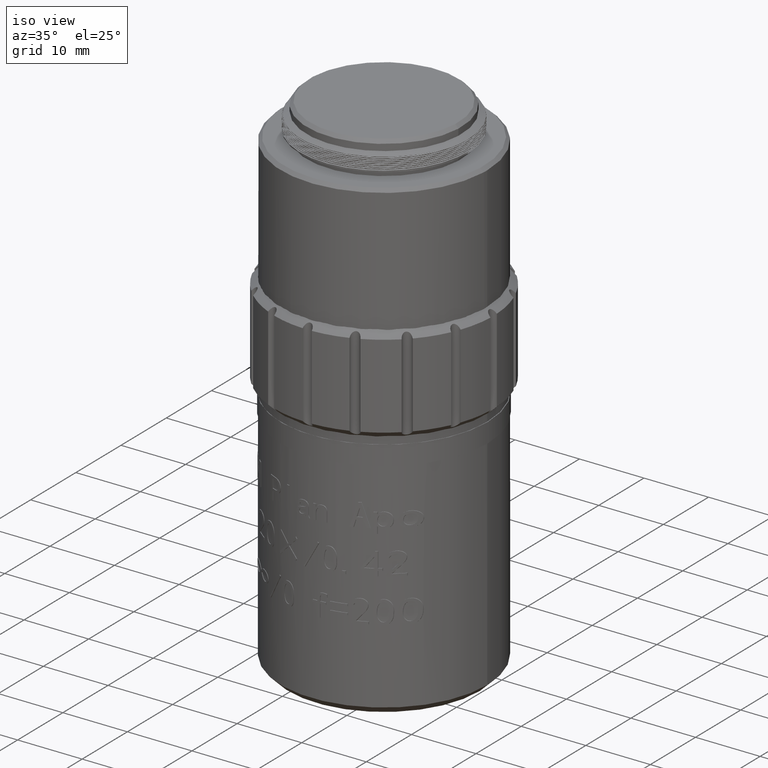
[diagram: clean part render]
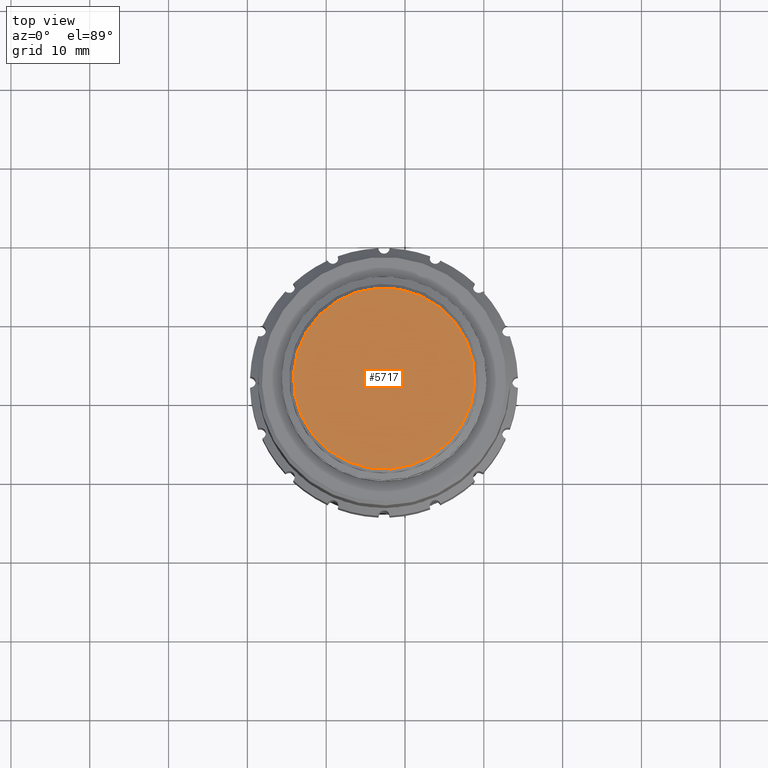
[diagram: tour spotlight — one face highlighted and labeled with its STEP entity id]
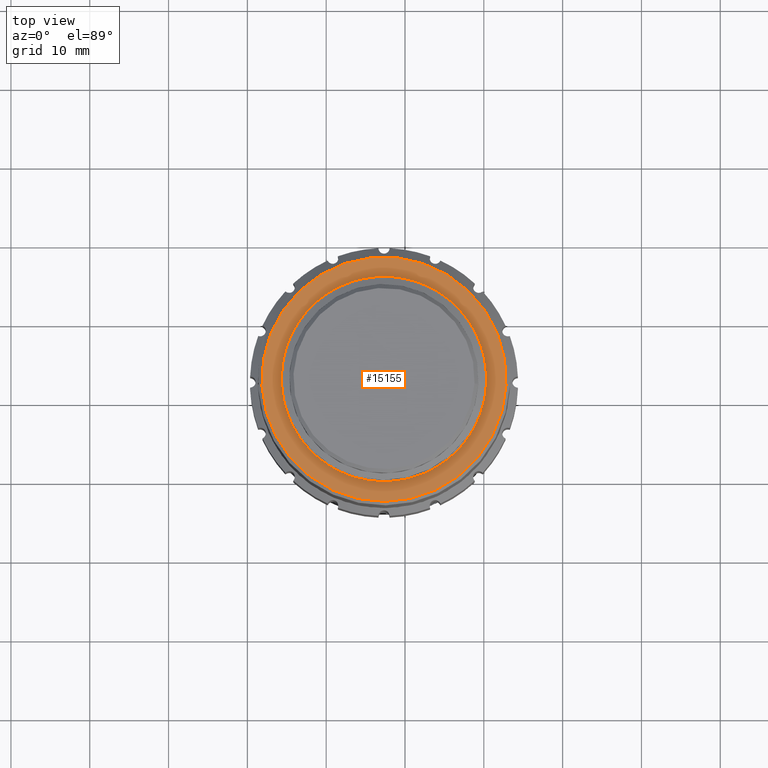
[diagram: tour spotlight — one face highlighted and labeled with its STEP entity id]
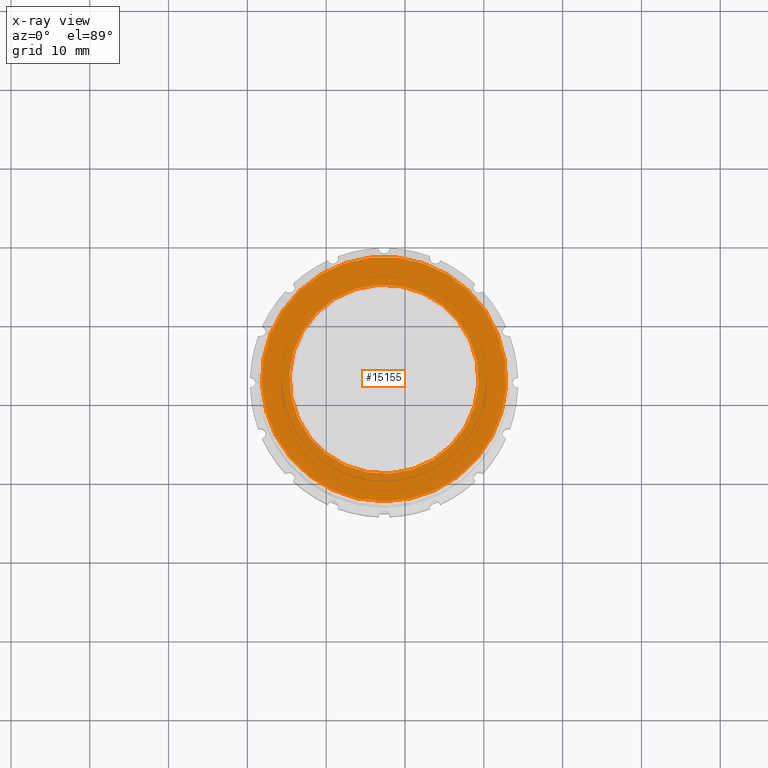
[diagram: x-ray of the same camera — body ghosted, this tour face saturated]
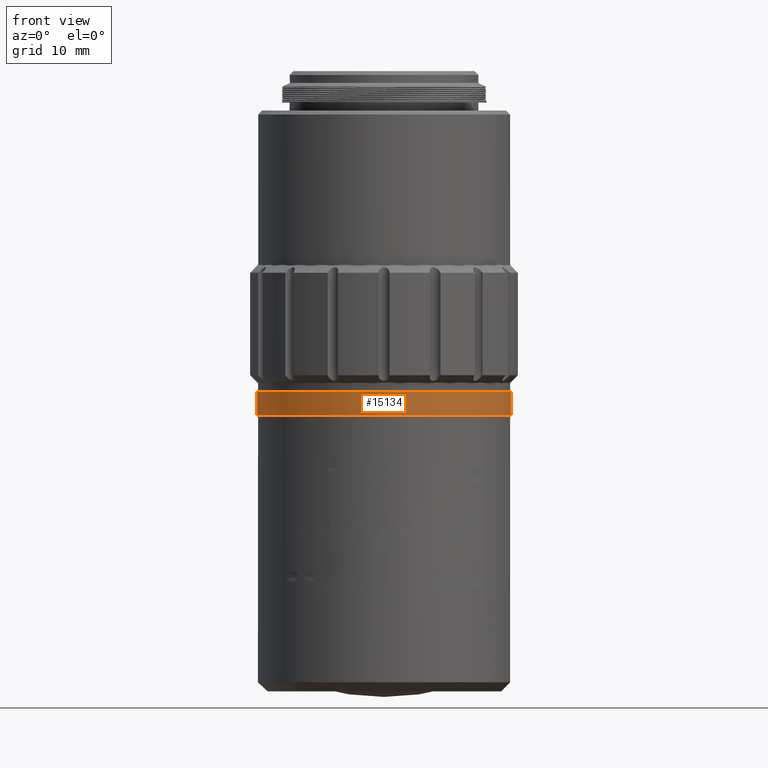
[diagram: tour spotlight — one face highlighted and labeled with its STEP entity id]
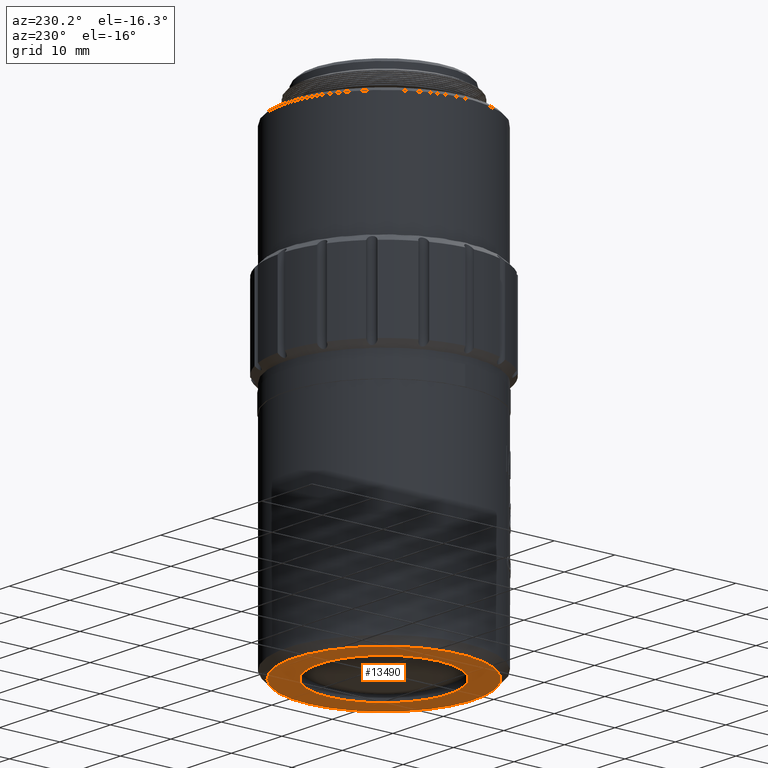
[diagram: tour spotlight — one face highlighted and labeled with its STEP entity id]
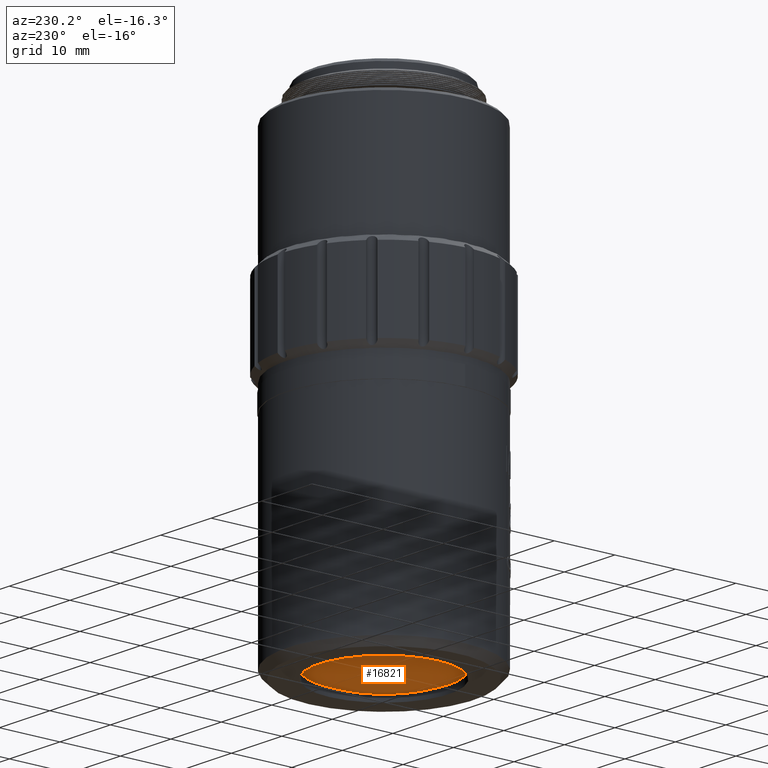
[diagram: tour spotlight — one face highlighted and labeled with its STEP entity id]
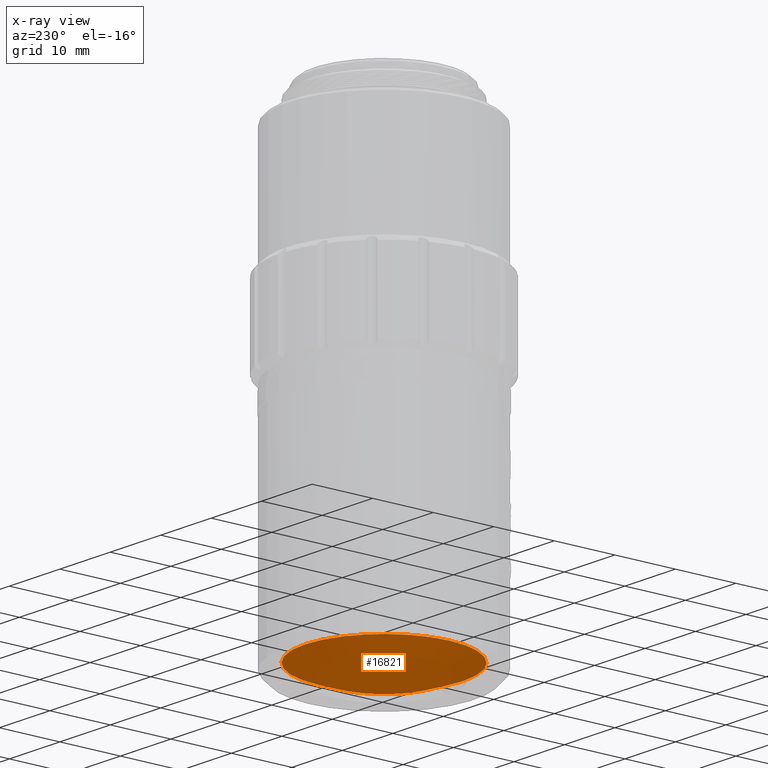
[diagram: x-ray of the same camera — body ghosted, this tour face saturated]
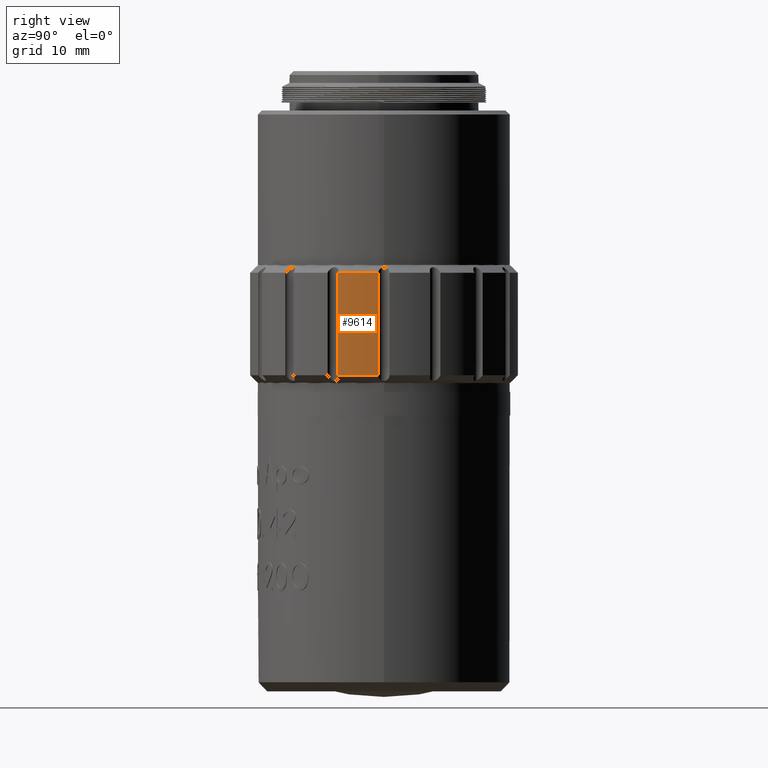
[diagram: tour spotlight — one face highlighted and labeled with its STEP entity id]
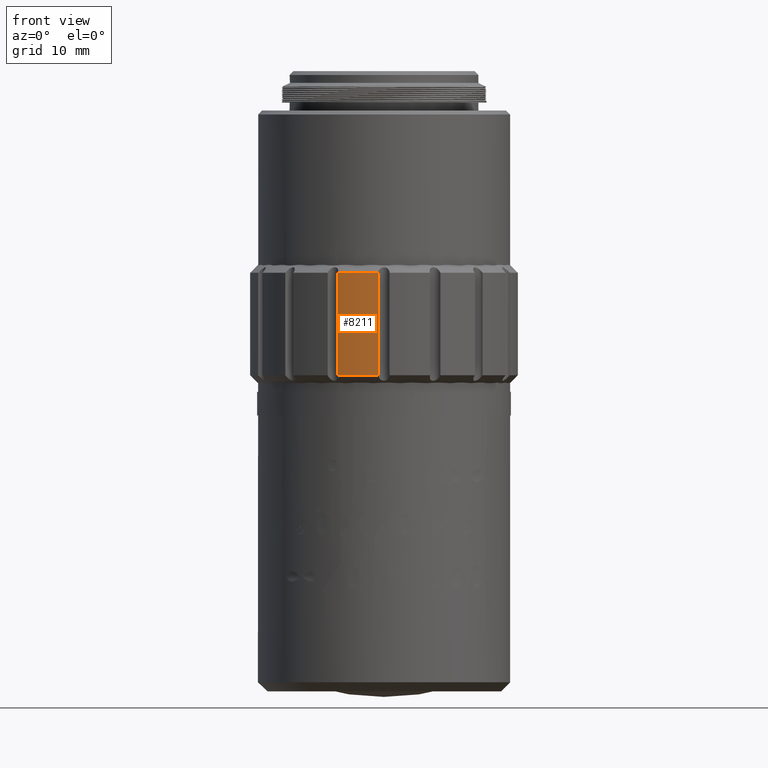
[diagram: tour spotlight — one face highlighted and labeled with its STEP entity id]
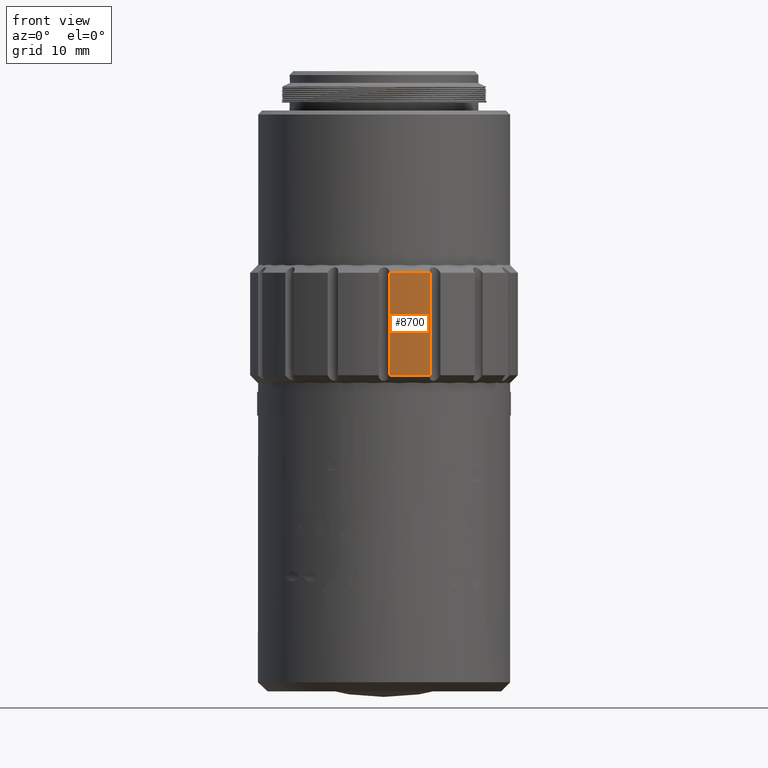
[diagram: tour spotlight — one face highlighted and labeled with its STEP entity id]
A machine part: a face-by-face anatomy tour. The part has 316 B-rep faces; the first image is the clean iso view, then the 8 largest visible faces are spotlighted one at a time (largest first), each with its STEP entity span.

Face 1 — top view, entity #5717. In plain terms, the highlighted planar face has unit normal (0, 0, 1).
Definition (entity closure, byte-faithful):
#2453 = PLANE ( 'NONE',  #8706 ) ;
#2807 = AXIS2_PLACEMENT_3D ( 'NONE', #12422, #10844, #3688 ) ;
#3675 = DIRECTION ( 'NONE',  ( 0.9984986589527603540, -0.05477616333350730782, 0.000000000000000000 ) ) ;
#3688 = DIRECTION ( 'NONE',  ( 0.9984986589527603540, -0.05477616333350738415, 0.000000000000000000 ) ) ;
#4784 = EDGE_LOOP ( 'NONE', ( #13995 ) ) ;
#4984 = CARTESIAN_POINT ( 'NONE',  ( -111.1802995289275344, 21.38537695410330386, 32.09225607790694568 ) ) ;
#5717 = ADVANCED_FACE ( 'NONE', ( #16756 ), #2453, .T. ) ;
#6471 = DIRECTION ( 'NONE',  ( 0.000000000000000000, 0.000000000000000000, 1.000000000000000000 ) ) ;
#8461 = CIRCLE ( 'NONE', #2807, 11.50000000000000178 ) ;
#8706 = AXIS2_PLACEMENT_3D ( 'NONE', #12408, #6471, #3675 ) ;
#10728 = EDGE_CURVE ( 'NONE', #17504, #17504, #8461, .T. ) ;
#10844 = DIRECTION ( 'NONE',  ( 0.000000000000000000, 0.000000000000000000, 1.000000000000000000 ) ) ;
#12408 = CARTESIAN_POINT ( 'NONE',  ( -122.6630341068842824, 22.01530283243863906, 32.09225607790694568 ) ) ;
#12422 = CARTESIAN_POINT ( 'NONE',  ( -122.6630341068842824, 22.01530283243863906, 32.09225607790694568 ) ) ;
#13995 = ORIENTED_EDGE ( 'NONE', *, *, #10728, .T. ) ;
#16756 = FACE_OUTER_BOUND ( 'NONE', #4784, .T. ) ;
#17504 = VERTEX_POINT ( 'NONE', #4984 ) ;

Face 2 — top view, entity #15155. An x-ray twin of the same camera follows (body ghosted, this face saturated) — the face is partly hidden behind the body. In plain terms, the highlighted planar face has unit normal (0, 0, 1).
Definition (entity closure, byte-faithful):
#318 = EDGE_LOOP ( 'NONE', ( #18249 ) ) ;
#609 = CARTESIAN_POINT ( 'NONE',  ( -110.6810501994511498, 21.35798887243655031, 27.09225607790693857 ) ) ;
#987 = FACE_OUTER_BOUND ( 'NONE', #318, .T. ) ;
#1286 = DIRECTION ( 'NONE',  ( 0.9984986589527603540, -0.05477616333350721067, 0.000000000000000000 ) ) ;
#1313 = AXIS2_PLACEMENT_3D ( 'NONE', #15503, #11232, #1286 ) ;
#2471 = DIRECTION ( 'NONE',  ( 0.000000000000000000, 0.000000000000000000, 1.000000000000000000 ) ) ;
#2518 = ORIENTED_EDGE ( 'NONE', *, *, #11898, .F. ) ;
#3475 = EDGE_LOOP ( 'NONE', ( #2518 ) ) ;
#3863 = EDGE_CURVE ( 'NONE', #6478, #6478, #16737, .T. ) ;
#3974 = CARTESIAN_POINT ( 'NONE',  ( -122.6630341068842824, 22.01530283243863906, 27.09225607790693857 ) ) ;
#6478 = VERTEX_POINT ( 'NONE', #8990 ) ;
#8990 = CARTESIAN_POINT ( 'NONE',  ( -107.1863048931164997, 21.16627230076927901, 27.09225607790693857 ) ) ;
#10353 = AXIS2_PLACEMENT_3D ( 'NONE', #18224, #11439, #15443 ) ;
#11232 = DIRECTION ( 'NONE',  ( 0.000000000000000000, 0.000000000000000000, 1.000000000000000000 ) ) ;
#11439 = DIRECTION ( 'NONE',  ( 0.000000000000000000, 0.000000000000000000, 1.000000000000000000 ) ) ;
#11898 = EDGE_CURVE ( 'NONE', #14730, #14730, #18341, .T. ) ;
#14730 = VERTEX_POINT ( 'NONE', #609 ) ;
#15113 = DIRECTION ( 'NONE',  ( 0.9984986589527603540, -0.05477616333350730782, 0.000000000000000000 ) ) ;
#15155 = ADVANCED_FACE ( 'NONE', ( #987, #15295 ), #16770, .T. ) ;
#15295 = FACE_BOUND ( 'NONE', #3475, .T. ) ;
#15443 = DIRECTION ( 'NONE',  ( 0.9984986589527604650, -0.05477616333350729394, 0.000000000000000000 ) ) ;
#15503 = CARTESIAN_POINT ( 'NONE',  ( -122.6630341068842824, 22.01530283243863906, 27.09225607790693857 ) ) ;
#15949 = AXIS2_PLACEMENT_3D ( 'NONE', #3974, #2471, #15113 ) ;
#16737 = CIRCLE ( 'NONE', #1313, 15.50000000000000355 ) ;
#16770 = PLANE ( 'NONE',  #15949 ) ;
#18224 = CARTESIAN_POINT ( 'NONE',  ( -122.6630341068842824, 22.01530283243863906, 27.09225607790693857 ) ) ;
#18249 = ORIENTED_EDGE ( 'NONE', *, *, #3863, .T. ) ;
#18341 = CIRCLE ( 'NONE', #10353, 12.00000000000000533 ) ;

Face 3 — front view, entity #15134. In plain terms, the highlighted cylindrical surface (bore or boss wall) has radius 16.1 mm, axis along (0, 0, -1).
Definition (entity closure, byte-faithful):
#1134 = CIRCLE ( 'NONE', #4110, 16.10000000000000142 ) ;
#1164 = DIRECTION ( 'NONE',  ( 0.000000000000000000, 0.000000000000000000, -1.000000000000000000 ) ) ;
#1246 = AXIS2_PLACEMENT_3D ( 'NONE', #3769, #9254, #17775 ) ;
#1259 = CYLINDRICAL_SURFACE ( 'NONE', #6473, 16.10000000000000142 ) ;
#1341 = CARTESIAN_POINT ( 'NONE',  ( -122.6630341068842824, 22.01530283243863906, -8.607743922093051836 ) ) ;
#3769 = CARTESIAN_POINT ( 'NONE',  ( -122.6630341068842824, 22.01530283243863906, -11.60774392209305184 ) ) ;
#4110 = AXIS2_PLACEMENT_3D ( 'NONE', #10932, #1164, #13722 ) ;
#4620 = CARTESIAN_POINT ( 'NONE',  ( -138.7630341068842768, 22.01530283243863906, -11.60774392209305184 ) ) ;
#4907 = EDGE_LOOP ( 'NONE', ( #6481 ) ) ;
#6473 = AXIS2_PLACEMENT_3D ( 'NONE', #1341, #13730, #16498 ) ;
#6481 = ORIENTED_EDGE ( 'NONE', *, *, #9421, .T. ) ;
#7700 = VERTEX_POINT ( 'NONE', #9080 ) ;
#8250 = FACE_OUTER_BOUND ( 'NONE', #4907, .T. ) ;
#8887 = ORIENTED_EDGE ( 'NONE', *, *, #17281, .F. ) ;
#9080 = CARTESIAN_POINT ( 'NONE',  ( -138.7630341068842768, 22.01530283243863906, -8.607743922093051836 ) ) ;
#9254 = DIRECTION ( 'NONE',  ( 0.000000000000000000, 0.000000000000000000, -1.000000000000000000 ) ) ;
#9273 = CIRCLE ( 'NONE', #1246, 16.10000000000000142 ) ;
#9421 = EDGE_CURVE ( 'NONE', #7700, #7700, #1134, .T. ) ;
#10932 = CARTESIAN_POINT ( 'NONE',  ( -122.6630341068842824, 22.01530283243863906, -8.607743922093051836 ) ) ;
#12137 = VERTEX_POINT ( 'NONE', #4620 ) ;
#12850 = EDGE_LOOP ( 'NONE', ( #8887 ) ) ;
#13722 = DIRECTION ( 'NONE',  ( -1.000000000000000000, 0.000000000000000000, 0.000000000000000000 ) ) ;
#13730 = DIRECTION ( 'NONE',  ( 0.000000000000000000, 0.000000000000000000, -1.000000000000000000 ) ) ;
#15134 = ADVANCED_FACE ( 'NONE', ( #8250, #18251 ), #1259, .T. ) ;
#16498 = DIRECTION ( 'NONE',  ( -1.000000000000000000, 0.000000000000000000, 0.000000000000000000 ) ) ;
#17281 = EDGE_CURVE ( 'NONE', #12137, #12137, #9273, .T. ) ;
#17775 = DIRECTION ( 'NONE',  ( -1.000000000000000000, 0.000000000000000000, 0.000000000000000000 ) ) ;
#18251 = FACE_OUTER_BOUND ( 'NONE', #12850, .T. ) ;

Face 4 — auxiliary view, entity #13490. In plain terms, the highlighted planar face has unit normal (0, 0, 1).
Definition (entity closure, byte-faithful):
#963 = EDGE_LOOP ( 'NONE', ( #15543 ) ) ;
#1903 = CARTESIAN_POINT ( 'NONE',  ( -107.8130341068843876, 22.01530283243863906, -46.60774392209305717 ) ) ;
#1994 = VERTEX_POINT ( 'NONE', #1903 ) ;
#2334 = EDGE_CURVE ( 'NONE', #1994, #1994, #15178, .T. ) ;
#2404 = AXIS2_PLACEMENT_3D ( 'NONE', #16066, #5965, #11892 ) ;
#2873 = FACE_OUTER_BOUND ( 'NONE', #11732, .T. ) ;
#3310 = VERTEX_POINT ( 'NONE', #12040 ) ;
#3426 = DIRECTION ( 'NONE',  ( -0.000000000000000000, -0.000000000000000000, -1.000000000000000000 ) ) ;
#3474 = ORIENTED_EDGE ( 'NONE', *, *, #2334, .T. ) ;
#3716 = EDGE_CURVE ( 'NONE', #3310, #3310, #10431, .T. ) ;
#5854 = AXIS2_PLACEMENT_3D ( 'NONE', #8745, #12922, #14404 ) ;
#5965 = DIRECTION ( 'NONE',  ( 0.000000000000000000, 0.000000000000000000, -1.000000000000000000 ) ) ;
#7170 = FACE_BOUND ( 'NONE', #963, .T. ) ;
#8745 = CARTESIAN_POINT ( 'NONE',  ( -145.5982777142671978, 0.000000000000000000, -46.60774392209305717 ) ) ;
#10431 = CIRCLE ( 'NONE', #2404, 10.71781334890054005 ) ;
#11732 = EDGE_LOOP ( 'NONE', ( #3474 ) ) ;
#11892 = DIRECTION ( 'NONE',  ( -1.000000000000000000, 0.000000000000000000, 0.000000000000000000 ) ) ;
#12040 = CARTESIAN_POINT ( 'NONE',  ( -133.3808474557848172, 22.01530283243863906, -46.60774392209305717 ) ) ;
#12922 = DIRECTION ( 'NONE',  ( 0.000000000000000000, 0.000000000000000000, 1.000000000000000000 ) ) ;
#13490 = ADVANCED_FACE ( 'NONE', ( #7170, #2873 ), #15606, .F. ) ;
#14404 = DIRECTION ( 'NONE',  ( 1.000000000000000000, 0.000000000000000000, -0.000000000000000000 ) ) ;
#15178 = CIRCLE ( 'NONE', #18141, 14.84999999999989129 ) ;
#15543 = ORIENTED_EDGE ( 'NONE', *, *, #3716, .F. ) ;
#15606 = PLANE ( 'NONE',  #5854 ) ;
#15866 = DIRECTION ( 'NONE',  ( 1.000000000000000000, 0.000000000000000000, 0.000000000000000000 ) ) ;
#16066 = CARTESIAN_POINT ( 'NONE',  ( -122.6630341068842824, 22.01530283243863906, -46.60774392209305717 ) ) ;
#16144 = CARTESIAN_POINT ( 'NONE',  ( -122.6630341068842824, 22.01530283243863906, -46.60774392209305717 ) ) ;
#18141 = AXIS2_PLACEMENT_3D ( 'NONE', #16144, #3426, #15866 ) ;

Face 5 — auxiliary view, entity #16821. An x-ray twin of the same camera follows (body ghosted, this face saturated) — the face is partly hidden behind the body. In plain terms, the highlighted spherical surface has radius 31.2095 mm.
Definition (entity closure, byte-faithful):
#1463 = FACE_OUTER_BOUND ( 'NONE', #14187, .T. ) ;
#2717 = AXIS2_PLACEMENT_3D ( 'NONE', #10032, #8826, #8551 ) ;
#3134 = ORIENTED_EDGE ( 'NONE', *, *, #7014, .F. ) ;
#3402 = VERTEX_POINT ( 'NONE', #3492 ) ;
#3492 = CARTESIAN_POINT ( 'NONE',  ( -122.6630341068842824, 35.03833184500979314, -44.46615452867705187 ) ) ;
#4470 = CIRCLE ( 'NONE', #17791, 13.02302901257115764 ) ;
#5499 = CARTESIAN_POINT ( 'NONE',  ( -122.6630341068842824, 22.01530283243863195, -44.46615452867705187 ) ) ;
#7014 = EDGE_CURVE ( 'NONE', #3402, #3402, #4470, .T. ) ;
#8551 = DIRECTION ( 'NONE',  ( 0.000000000000000000, -1.000000000000000000, 0.000000000000000000 ) ) ;
#8826 = DIRECTION ( 'NONE',  ( 0.000000000000000000, 0.000000000000000000, -1.000000000000000000 ) ) ;
#10032 = CARTESIAN_POINT ( 'NONE',  ( -122.6630341068842824, 22.01530283243863195, -16.10359932668290028 ) ) ;
#13002 = SPHERICAL_SURFACE ( 'NONE', #2717, 31.20951493132239918 ) ;
#14187 = EDGE_LOOP ( 'NONE', ( #3134 ) ) ;
#15694 = DIRECTION ( 'NONE',  ( -0.000000000000000000, -1.313240075463129887E-16, 1.000000000000000000 ) ) ;
#16821 = ADVANCED_FACE ( 'NONE', ( #1463 ), #13002, .T. ) ;
#16894 = DIRECTION ( 'NONE',  ( 0.000000000000000000, 1.000000000000000000, 0.000000000000000000 ) ) ;
#17791 = AXIS2_PLACEMENT_3D ( 'NONE', #5499, #15694, #16894 ) ;

Face 6 — right view, entity #9614. In plain terms, the highlighted cylindrical surface (partial cylindrical patch) has radius 17 mm, axis along (-0, -0, -1).
Definition (entity closure, byte-faithful):
#168 = DIRECTION ( 'NONE',  ( -0.000000000000000000, -0.000000000000000000, -1.000000000000000000 ) ) ;
#969 = DIRECTION ( 'NONE',  ( 0.000000000000000000, 0.000000000000000000, -1.000000000000000000 ) ) ;
#1260 = ORIENTED_EDGE ( 'NONE', *, *, #6637, .T. ) ;
#2161 = EDGE_CURVE ( 'NONE', #13875, #2789, #13409, .T. ) ;
#2358 = LINE ( 'NONE', #15188, #13420 ) ;
#2366 = DIRECTION ( 'NONE',  ( -0.000000000000000000, -0.000000000000000000, -1.000000000000000000 ) ) ;
#2789 = VERTEX_POINT ( 'NONE', #15117 ) ;
#3527 = AXIS2_PLACEMENT_3D ( 'NONE', #10842, #2366, #8064 ) ;
#3823 = LINE ( 'NONE', #7925, #4586 ) ;
#4586 = VECTOR ( 'NONE', #15243, 1000.000000000000000 ) ;
#4753 = EDGE_CURVE ( 'NONE', #14809, #13875, #3823, .T. ) ;
#4815 = ORIENTED_EDGE ( 'NONE', *, *, #17321, .T. ) ;
#5670 = DIRECTION ( 'NONE',  ( -1.000000000000000000, 0.000000000000000000, 0.000000000000000000 ) ) ;
#6294 = AXIS2_PLACEMENT_3D ( 'NONE', #7253, #168, #5670 ) ;
#6637 = EDGE_CURVE ( 'NONE', #11287, #14809, #12264, .T. ) ;
#7253 = CARTESIAN_POINT ( 'NONE',  ( -122.6630341068842540, 22.01530283243863195, 6.500000000000000000 ) ) ;
#7525 = AXIS2_PLACEMENT_3D ( 'NONE', #13510, #10352, #14622 ) ;
#7925 = CARTESIAN_POINT ( 'NONE',  ( -105.6777818098502735, 21.30734491977609224, -5.050000000000006928 ) ) ;
#8064 = DIRECTION ( 'NONE',  ( -1.000000000000000000, 0.000000000000000000, 0.000000000000000000 ) ) ;
#8609 = EDGE_LOOP ( 'NONE', ( #16903, #4815, #1260, #11402 ) ) ;
#9614 = ADVANCED_FACE ( 'NONE', ( #16398 ), #17884, .T. ) ;
#10352 = DIRECTION ( 'NONE',  ( 0.000000000000000000, 0.000000000000000000, 1.000000000000000000 ) ) ;
#10842 = CARTESIAN_POINT ( 'NONE',  ( -122.6630341068842540, 22.01530283243863195, -8.750073880203553145 ) ) ;
#10846 = CARTESIAN_POINT ( 'NONE',  ( -105.6777818098502735, 21.30734491977609224, 6.500000000000000000 ) ) ;
#11287 = VERTEX_POINT ( 'NONE', #15966 ) ;
#11402 = ORIENTED_EDGE ( 'NONE', *, *, #4753, .T. ) ;
#11777 = CARTESIAN_POINT ( 'NONE',  ( -105.6777818098502735, 21.30734491977609224, -6.499999999999999112 ) ) ;
#12264 = CIRCLE ( 'NONE', #7525, 17.00000000000000000 ) ;
#13409 = CIRCLE ( 'NONE', #6294, 16.99999999999998579 ) ;
#13420 = VECTOR ( 'NONE', #969, 1000.000000000000000 ) ;
#13510 = CARTESIAN_POINT ( 'NONE',  ( -122.6630341068842540, 22.01530283243863195, -6.499999999999999112 ) ) ;
#13875 = VERTEX_POINT ( 'NONE', #10846 ) ;
#14622 = DIRECTION ( 'NONE',  ( 1.000000000000000000, 0.000000000000000000, 0.000000000000000000 ) ) ;
#14809 = VERTEX_POINT ( 'NONE', #11777 ) ;
#15117 = CARTESIAN_POINT ( 'NONE',  ( -106.6997833911265161, 16.16939600921096343, 6.500000000000000000 ) ) ;
#15188 = CARTESIAN_POINT ( 'NONE',  ( -106.6997833911265161, 16.16939600921095632, -5.050000000000006928 ) ) ;
#15243 = DIRECTION ( 'NONE',  ( -0.000000000000000000, -0.000000000000000000, 1.000000000000000000 ) ) ;
#15966 = CARTESIAN_POINT ( 'NONE',  ( -106.6997833911265161, 16.16939600921095987, -6.499999999999999112 ) ) ;
#16398 = FACE_OUTER_BOUND ( 'NONE', #8609, .T. ) ;
#16903 = ORIENTED_EDGE ( 'NONE', *, *, #2161, .T. ) ;
#17321 = EDGE_CURVE ( 'NONE', #2789, #11287, #2358, .T. ) ;
#17884 = CYLINDRICAL_SURFACE ( 'NONE', #3527, 16.99999999999998579 ) ;

Face 7 — front view, entity #8211. In plain terms, the highlighted cylindrical surface (partial cylindrical patch) has radius 17 mm, axis along (-0, -0, -1).
Definition (entity closure, byte-faithful):
#1941 = DIRECTION ( 'NONE',  ( -0.000000000000000000, -0.000000000000000000, 1.000000000000000000 ) ) ;
#2319 = CYLINDRICAL_SURFACE ( 'NONE', #16948, 16.99999999999998579 ) ;
#3105 = VERTEX_POINT ( 'NONE', #14998 ) ;
#3695 = ORIENTED_EDGE ( 'NONE', *, *, #14403, .T. ) ;
#4019 = EDGE_LOOP ( 'NONE', ( #3695, #12776, #11133, #13429 ) ) ;
#4965 = AXIS2_PLACEMENT_3D ( 'NONE', #11524, #11616, #10234 ) ;
#5115 = LINE ( 'NONE', #14768, #12388 ) ;
#5221 = DIRECTION ( 'NONE',  ( -0.000000000000000000, -0.000000000000000000, -1.000000000000000000 ) ) ;
#5838 = VERTEX_POINT ( 'NONE', #17205 ) ;
#7077 = EDGE_CURVE ( 'NONE', #3105, #5838, #9514, .T. ) ;
#7444 = CARTESIAN_POINT ( 'NONE',  ( -122.6630341068842540, 22.01530283243863195, -6.499999999999999112 ) ) ;
#7520 = DIRECTION ( 'NONE',  ( 0.000000000000000000, 0.000000000000000000, -1.000000000000000000 ) ) ;
#8211 = ADVANCED_FACE ( 'NONE', ( #12465 ), #2319, .T. ) ;
#8626 = VERTEX_POINT ( 'NONE', #10774 ) ;
#8679 = VERTEX_POINT ( 'NONE', #12531 ) ;
#9514 = CIRCLE ( 'NONE', #10109, 17.00000000000000000 ) ;
#10109 = AXIS2_PLACEMENT_3D ( 'NONE', #7444, #10227, #17261 ) ;
#10227 = DIRECTION ( 'NONE',  ( 0.000000000000000000, 0.000000000000000000, 1.000000000000000000 ) ) ;
#10234 = DIRECTION ( 'NONE',  ( -1.000000000000000000, 0.000000000000000000, 0.000000000000000000 ) ) ;
#10530 = EDGE_CURVE ( 'NONE', #8626, #3105, #11682, .T. ) ;
#10774 = CARTESIAN_POINT ( 'NONE',  ( -128.5089409301119758, 6.052052116680906479, 6.500000000000000000 ) ) ;
#11133 = ORIENTED_EDGE ( 'NONE', *, *, #7077, .T. ) ;
#11524 = CARTESIAN_POINT ( 'NONE',  ( -122.6630341068842540, 22.01530283243863195, 6.500000000000000000 ) ) ;
#11616 = DIRECTION ( 'NONE',  ( -0.000000000000000000, -0.000000000000000000, -1.000000000000000000 ) ) ;
#11682 = LINE ( 'NONE', #16036, #14084 ) ;
#12388 = VECTOR ( 'NONE', #1941, 1000.000000000000000 ) ;
#12465 = FACE_OUTER_BOUND ( 'NONE', #4019, .T. ) ;
#12531 = CARTESIAN_POINT ( 'NONE',  ( -123.3709920195468470, 5.030050535404641643, 6.500000000000000000 ) ) ;
#12776 = ORIENTED_EDGE ( 'NONE', *, *, #10530, .T. ) ;
#13429 = ORIENTED_EDGE ( 'NONE', *, *, #14594, .T. ) ;
#13871 = CIRCLE ( 'NONE', #4965, 16.99999999999998579 ) ;
#14084 = VECTOR ( 'NONE', #7520, 1000.000000000000000 ) ;
#14403 = EDGE_CURVE ( 'NONE', #8679, #8626, #13871, .T. ) ;
#14594 = EDGE_CURVE ( 'NONE', #5838, #8679, #5115, .T. ) ;
#14768 = CARTESIAN_POINT ( 'NONE',  ( -123.3709920195468470, 5.030050535404641643, -5.050000000000006928 ) ) ;
#14998 = CARTESIAN_POINT ( 'NONE',  ( -128.5089409301119758, 6.052052116680902927, -6.499999999999999112 ) ) ;
#16036 = CARTESIAN_POINT ( 'NONE',  ( -128.5089409301119758, 6.052052116680906479, -5.050000000000006928 ) ) ;
#16948 = AXIS2_PLACEMENT_3D ( 'NONE', #18015, #5221, #18112 ) ;
#17205 = CARTESIAN_POINT ( 'NONE',  ( -123.3709920195468470, 5.030050535404641643, -6.499999999999999112 ) ) ;
#17261 = DIRECTION ( 'NONE',  ( 1.000000000000000000, 0.000000000000000000, 0.000000000000000000 ) ) ;
#18015 = CARTESIAN_POINT ( 'NONE',  ( -122.6630341068842540, 22.01530283243863195, -8.750073880203553145 ) ) ;
#18112 = DIRECTION ( 'NONE',  ( -1.000000000000000000, 0.000000000000000000, 0.000000000000000000 ) ) ;

Face 8 — front view, entity #8700. In plain terms, the highlighted cylindrical surface (partial cylindrical patch) has radius 17 mm, axis along (-0, -0, -1).
Definition (entity closure, byte-faithful):
#808 = CIRCLE ( 'NONE', #12727, 17.00000000000000000 ) ;
#1465 = DIRECTION ( 'NONE',  ( -1.000000000000000000, 0.000000000000000000, 0.000000000000000000 ) ) ;
#1568 = CARTESIAN_POINT ( 'NONE',  ( -121.9550761942217747, 5.030050535404635426, -6.499999999999999112 ) ) ;
#2806 = CARTESIAN_POINT ( 'NONE',  ( -116.8171272836566459, 6.052052116680864735, -6.500000000000000000 ) ) ;
#3008 = CIRCLE ( 'NONE', #15481, 16.99999999999998579 ) ;
#3086 = ORIENTED_EDGE ( 'NONE', *, *, #11614, .T. ) ;
#3871 = DIRECTION ( 'NONE',  ( -0.000000000000000000, -0.000000000000000000, 1.000000000000000000 ) ) ;
#4702 = VECTOR ( 'NONE', #3871, 1000.000000000000000 ) ;
#5118 = EDGE_CURVE ( 'NONE', #10565, #6309, #3008, .T. ) ;
#5268 = CARTESIAN_POINT ( 'NONE',  ( -116.8171272836566317, 6.052052116680864735, -5.050000000000006928 ) ) ;
#5586 = CARTESIAN_POINT ( 'NONE',  ( -122.6630341068842540, 22.01530283243863195, 6.500000000000000000 ) ) ;
#5603 = VECTOR ( 'NONE', #7441, 1000.000000000000000 ) ;
#6186 = ORIENTED_EDGE ( 'NONE', *, *, #9582, .T. ) ;
#6309 = VERTEX_POINT ( 'NONE', #16207 ) ;
#7015 = ORIENTED_EDGE ( 'NONE', *, *, #8558, .T. ) ;
#7050 = DIRECTION ( 'NONE',  ( -1.000000000000000000, 0.000000000000000000, 0.000000000000000000 ) ) ;
#7088 = AXIS2_PLACEMENT_3D ( 'NONE', #16422, #15667, #7050 ) ;
#7441 = DIRECTION ( 'NONE',  ( 0.000000000000000000, 0.000000000000000000, -1.000000000000000000 ) ) ;
#8129 = DIRECTION ( 'NONE',  ( 1.000000000000000000, 0.000000000000000000, 0.000000000000000000 ) ) ;
#8558 = EDGE_CURVE ( 'NONE', #6309, #14425, #11977, .T. ) ;
#8700 = ADVANCED_FACE ( 'NONE', ( #12164 ), #16330, .T. ) ;
#9359 = LINE ( 'NONE', #5268, #4702 ) ;
#9582 = EDGE_CURVE ( 'NONE', #12426, #10565, #9359, .T. ) ;
#10225 = CARTESIAN_POINT ( 'NONE',  ( -121.9550761942217747, 5.030050535404635426, -5.050000000000006928 ) ) ;
#10565 = VERTEX_POINT ( 'NONE', #13175 ) ;
#11614 = EDGE_CURVE ( 'NONE', #14425, #12426, #808, .T. ) ;
#11977 = LINE ( 'NONE', #10225, #5603 ) ;
#12164 = FACE_OUTER_BOUND ( 'NONE', #16729, .T. ) ;
#12426 = VERTEX_POINT ( 'NONE', #2806 ) ;
#12727 = AXIS2_PLACEMENT_3D ( 'NONE', #15078, #17760, #8129 ) ;
#13175 = CARTESIAN_POINT ( 'NONE',  ( -116.8171272836566459, 6.052052116680864735, 6.500000000000000000 ) ) ;
#14208 = DIRECTION ( 'NONE',  ( -0.000000000000000000, -0.000000000000000000, -1.000000000000000000 ) ) ;
#14425 = VERTEX_POINT ( 'NONE', #1568 ) ;
#15078 = CARTESIAN_POINT ( 'NONE',  ( -122.6630341068842540, 22.01530283243863195, -6.499999999999999112 ) ) ;
#15481 = AXIS2_PLACEMENT_3D ( 'NONE', #5586, #14208, #1465 ) ;
#15667 = DIRECTION ( 'NONE',  ( -0.000000000000000000, -0.000000000000000000, -1.000000000000000000 ) ) ;
#16207 = CARTESIAN_POINT ( 'NONE',  ( -121.9550761942217747, 5.030050535404635426, 6.500000000000000000 ) ) ;
#16330 = CYLINDRICAL_SURFACE ( 'NONE', #7088, 16.99999999999998579 ) ;
#16422 = CARTESIAN_POINT ( 'NONE',  ( -122.6630341068842540, 22.01530283243863195, -8.750073880203553145 ) ) ;
#16729 = EDGE_LOOP ( 'NONE', ( #17036, #7015, #3086, #6186 ) ) ;
#17036 = ORIENTED_EDGE ( 'NONE', *, *, #5118, .T. ) ;
#17760 = DIRECTION ( 'NONE',  ( 0.000000000000000000, 0.000000000000000000, 1.000000000000000000 ) ) ;